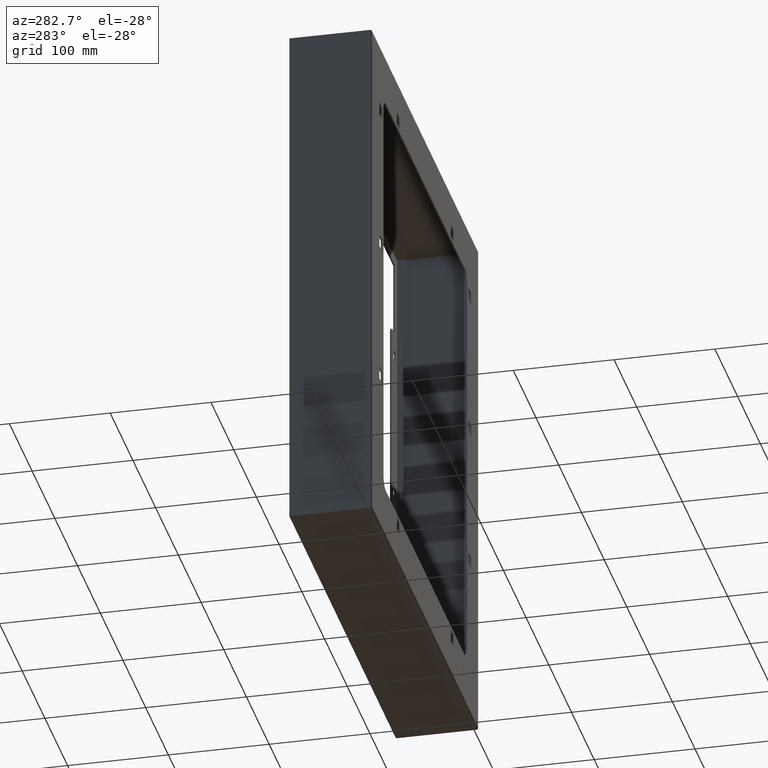
[diagram: clean part render]
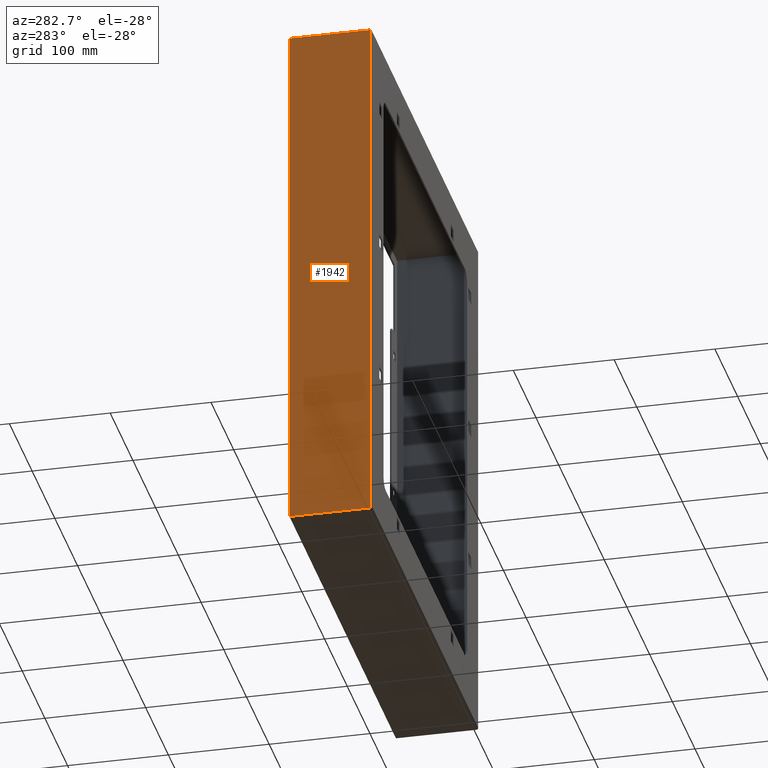
[diagram: same view with one face highlighted and labeled with its STEP entity id]
A machine part, auxiliary view. The second image highlights one B-rep face of the part: STEP entity #1942.
In plain terms, the highlighted planar face has unit normal (1, -0, 0).
Its self-contained STEP definition (entity closure, byte-faithful):
#100 = CARTESIAN_POINT ( 'NONE',  ( -234.5000000000000000, 82.00000000000000000, -262.0000000000000000 ) ) ;
#127 = CARTESIAN_POINT ( 'NONE',  ( -234.5000000000000300, 82.00000000000000000, 262.0000000000000000 ) ) ;
#130 = CARTESIAN_POINT ( 'NONE',  ( -234.5000000000000300, 1.999999999999988000, 262.0000000000000000 ) ) ;
#131 = CARTESIAN_POINT ( 'NONE',  ( -234.5000000000000000, 1.999999999999988000, -262.0000000000000000 ) ) ;
#257 = CARTESIAN_POINT ( 'NONE',  ( -234.5000000000000000, 82.00000000000000000, -262.0000000000000000 ) ) ;
#404 = VERTEX_POINT ( 'NONE', #100 ) ;
#486 = CARTESIAN_POINT ( 'NONE',  ( -234.5000000000000300, 2.000000000000001800, 262.0000000000000000 ) ) ;
#489 = DIRECTION ( 'NONE',  ( -1.059373115100340100E-016, 0.0000000000000000000, 1.000000000000000000 ) ) ;
#524 = VERTEX_POINT ( 'NONE', #130 ) ;
#526 = VERTEX_POINT ( 'NONE', #127 ) ;
#532 = VERTEX_POINT ( 'NONE', #131 ) ;
#548 = CARTESIAN_POINT ( 'NONE',  ( -234.5000000000000300, 82.00000000000000000, 262.0000000000000000 ) ) ;
#549 = DIRECTION ( 'NONE',  ( -0.0000000000000000000, -1.000000000000000000, -0.0000000000000000000 ) ) ;
#550 = CARTESIAN_POINT ( 'NONE',  ( -234.5000000000000300, 82.00000000000000000, 262.0000000000000000 ) ) ;
#551 = DIRECTION ( 'NONE',  ( -1.059373115100340100E-016, -0.0000000000000000000, 1.000000000000000000 ) ) ;
#1122 = ORIENTED_EDGE ( 'NONE', *, *, #2960, .F. ) ;
#1124 = ORIENTED_EDGE ( 'NONE', *, *, #2959, .F. ) ;
#1127 = ORIENTED_EDGE ( 'NONE', *, *, #2941, .T. ) ;
#1130 = ORIENTED_EDGE ( 'NONE', *, *, #1856, .T. ) ;
#1220 = PLANE ( 'NONE',  #1631 ) ;
#1222 = CARTESIAN_POINT ( 'NONE',  ( -234.5000000000000300, 82.00000000000000000, 262.0000000000000000 ) ) ;
#1232 = DIRECTION ( 'NONE',  ( 1.000000000000000000, -0.0000000000000000000, 1.059373115100340100E-016 ) ) ;
#1234 = DIRECTION ( 'NONE',  ( 1.059373115100340100E-016, 0.0000000000000000000, -1.000000000000000000 ) ) ;
#1631 = AXIS2_PLACEMENT_3D ( 'NONE', #1222, #1232, #1234 ) ;
#1856 = EDGE_CURVE ( 'NONE', #404, #532, #3635, .T. ) ;
#1942 = ADVANCED_FACE ( 'NONE', ( #3792 ), #1220, .F. ) ;
#2941 = EDGE_CURVE ( 'NONE', #532, #524, #3395, .T. ) ;
#2959 = EDGE_CURVE ( 'NONE', #526, #524, #3430, .T. ) ;
#2960 = EDGE_CURVE ( 'NONE', #404, #526, #3432, .T. ) ;
#3395 = LINE ( 'NONE', #486, #3398 ) ;
#3398 = VECTOR ( 'NONE', #489, 1000.000000000000000 ) ;
#3430 = LINE ( 'NONE', #548, #3433 ) ;
#3432 = LINE ( 'NONE', #550, #3435 ) ;
#3433 = VECTOR ( 'NONE', #549, 1000.000000000000000 ) ;
#3435 = VECTOR ( 'NONE', #551, 1000.000000000000000 ) ;
#3635 = LINE ( 'NONE', #257, #3646 ) ;
#3646 = VECTOR ( 'NONE', #4211, 1000.000000000000000 ) ;
#3792 = FACE_OUTER_BOUND ( 'NONE', #4455, .T. ) ;
#4211 = DIRECTION ( 'NONE',  ( -0.0000000000000000000, -1.000000000000000000, -0.0000000000000000000 ) ) ;
#4455 = EDGE_LOOP ( 'NONE', ( #1130, #1127, #1124, #1122 ) ) ;